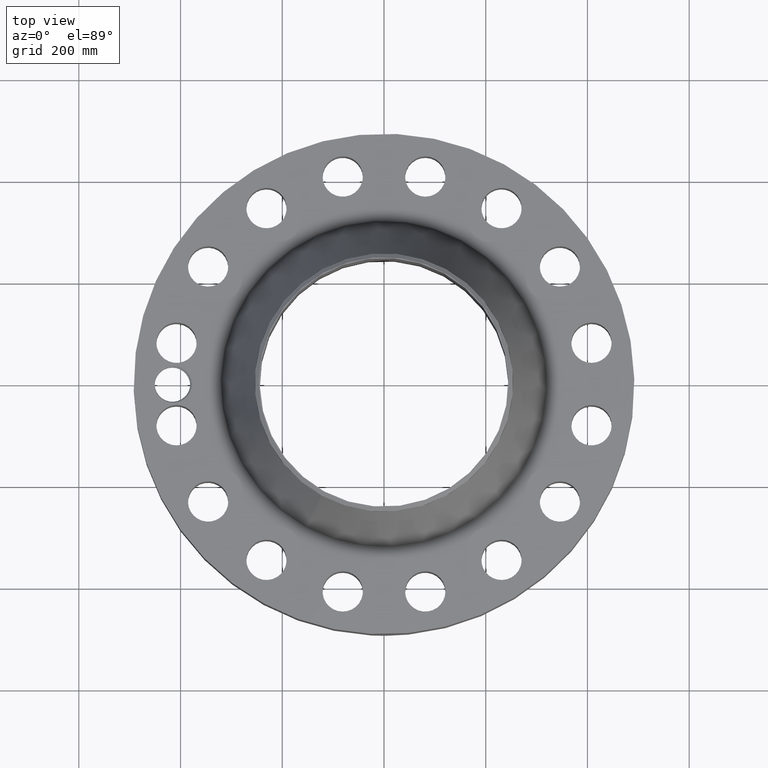
[diagram: clean part render]
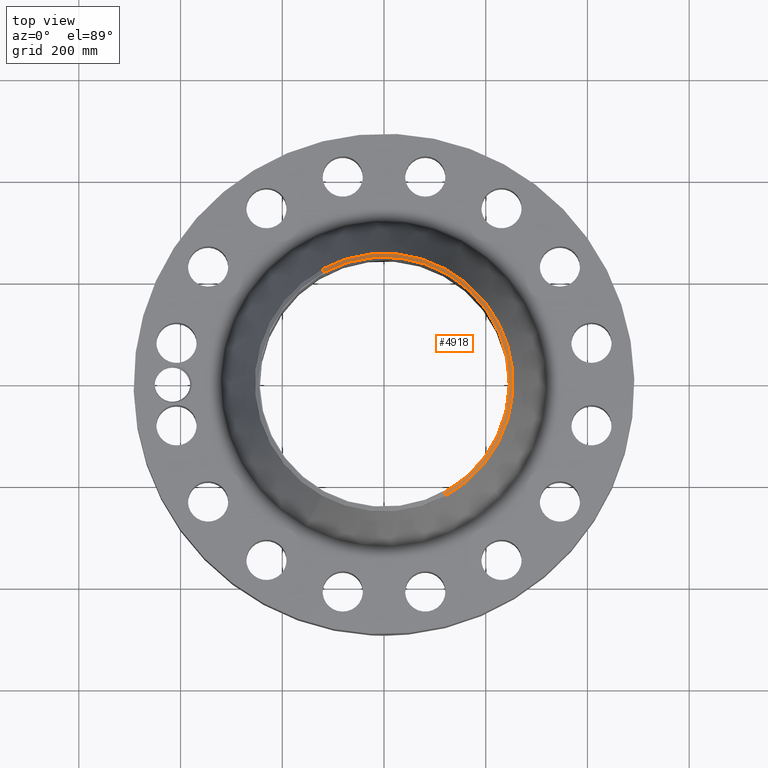
[diagram: same view with one face highlighted and labeled with its STEP entity id]
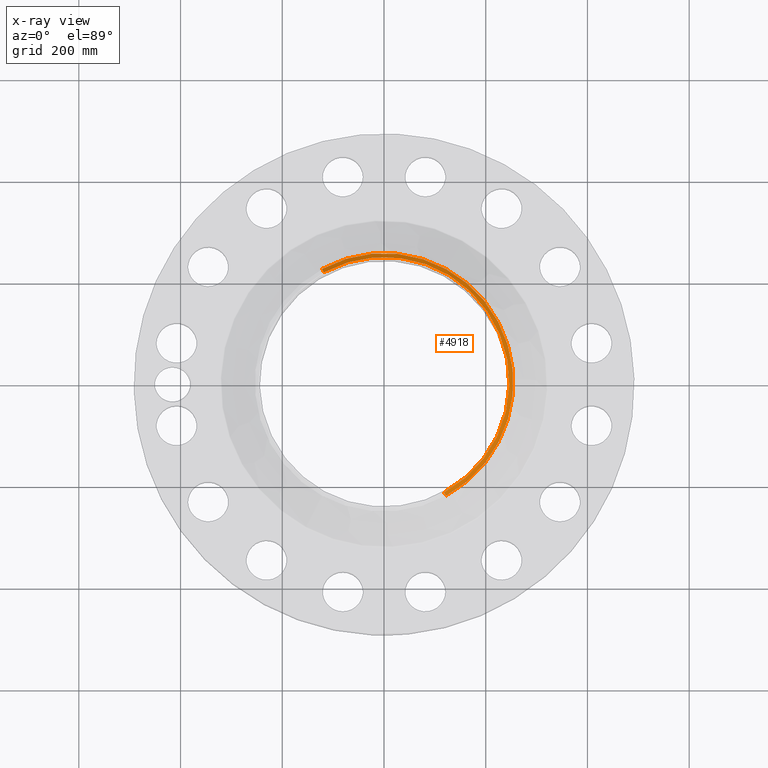
[diagram: x-ray of the same camera — body ghosted, the highlighted face saturated]
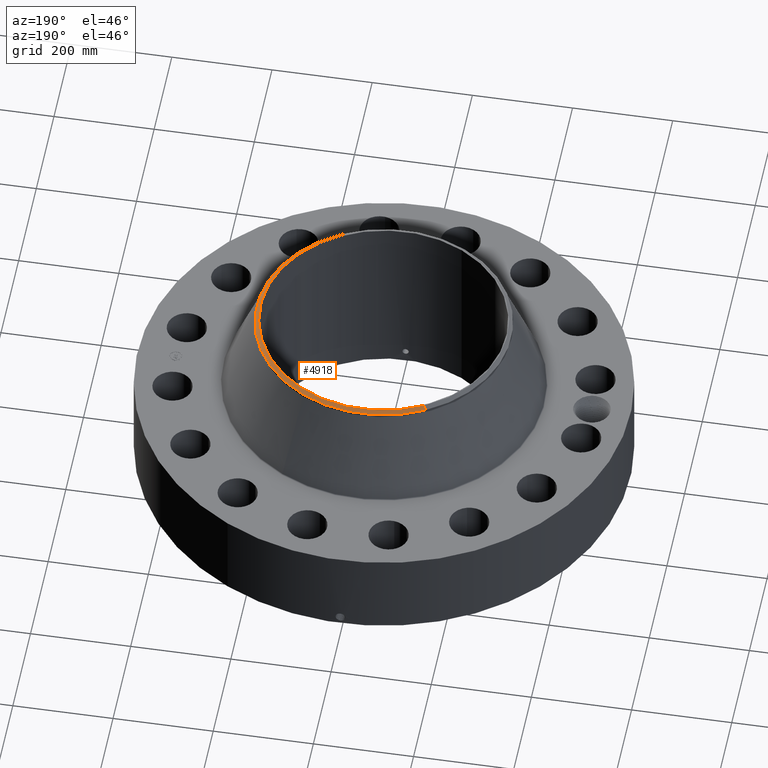
[diagram: same view with one face highlighted and labeled with its STEP entity id]
A machine part, top view. The second image highlights one B-rep face of the part: STEP entity #4918.
The next image is the same camera in x-ray: the body ghosted, the highlighted face saturated — about 0% of this face is hidden behind the body in this view.
A second angle (auxiliary view) of the same face is appended — the face is thin or edge-on in the first view.
In plain terms, the highlighted conical surface has half-angle 52.5 deg.
Its self-contained STEP definition (entity closure, byte-faithful):
#3745=AXIS2_PLACEMENT_3D('Circle Axis2P3D',#3743,#3744,$) ;
#3772=AXIS2_PLACEMENT_3D('Circle Axis2P3D',#3770,#3771,$) ;
#4546=AXIS2_PLACEMENT_3D('Circle Axis2P3D',#4544,#4545,$) ;
#4899=AXIS2_PLACEMENT_3D('Cone Axis2P3D',#4896,#4897,#4898) ;
#3740=CARTESIAN_POINT('Vertex',(4.79425538606,8.77582561894,14.0226718274)) ;
#3743=CARTESIAN_POINT('Axis2P3D Location',(0.,0.,14.0226718274)) ;
#3747=CARTESIAN_POINT('Vertex',(4.79425538606,-8.77582561894,14.0226718274)) ;
#3767=CARTESIAN_POINT('Vertex',(-4.79425538606,8.77582561894,14.0226718274)) ;
#3770=CARTESIAN_POINT('Axis2P3D Location',(0.,0.,14.0226718274)) ;
#4544=CARTESIAN_POINT('Axis2P3D Location',(0.,0.,14.2500000001)) ;
#4548=CARTESIAN_POINT('Vertex',(4.65222085149,-8.51583314735,14.2500000001)) ;
#4550=CARTESIAN_POINT('Vertex',(-4.65222085149,8.51583314735,14.2500000001)) ;
#4896=CARTESIAN_POINT('Axis2P3D Location',(0.,0.,14.2500000001)) ;
#4901=CARTESIAN_POINT('Line Origine',(-4.72323811878,8.64582938315,14.1363359137)) ;
#4906=CARTESIAN_POINT('Line Origine',(4.72323811878,-8.64582938315,14.1363359137)) ;
#3744=DIRECTION('Axis2P3D Direction',(0.,0.,-0.0393700787402)) ;
#3771=DIRECTION('Axis2P3D Direction',(0.,0.,-0.0393700787402)) ;
#4545=DIRECTION('Axis2P3D Direction',(0.,0.,-0.0393700787402)) ;
#4897=DIRECTION('Axis2P3D Direction',(-0.,-0.,-0.0393700787402)) ;
#4898=DIRECTION('Axis2P3D XDirection',(0.0188750212049,-0.0345504945626,0.)) ;
#4902=DIRECTION('Vector Direction',(-0.014974561121,0.02741075027,-0.023966985394)) ;
#4907=DIRECTION('Vector Direction',(0.014974561121,-0.02741075027,-0.023966985394)) ;
#4903=VECTOR('Line Direction',#4902,0.0393700787402) ;
#4908=VECTOR('Line Direction',#4907,0.0393700787402) ;
#4912=ORIENTED_EDGE('',*,*,#4905,.F.) ;
#4913=ORIENTED_EDGE('',*,*,#4552,.F.) ;
#4914=ORIENTED_EDGE('',*,*,#4910,.T.) ;
#4915=ORIENTED_EDGE('',*,*,#3749,.T.) ;
#4916=ORIENTED_EDGE('',*,*,#3774,.F.) ;
#4918=ADVANCED_FACE('PartBody',(#4917),#4900,.T.) ;
#3746=CIRCLE('generated circle',#3745,10.) ;
#3773=CIRCLE('generated circle',#3772,10.) ;
#4547=CIRCLE('generated circle',#4546,9.70374015752) ;
#4900=CONICAL_SURFACE('Cone',#4899,9.70374015752,0.916297857297) ;
#3749=EDGE_CURVE('',#3748,#3741,#3746,.F.) ;
#3774=EDGE_CURVE('',#3768,#3741,#3773,.T.) ;
#4552=EDGE_CURVE('',#4549,#4551,#4547,.F.) ;
#4905=EDGE_CURVE('',#4551,#3768,#4904,.T.) ;
#4910=EDGE_CURVE('',#4549,#3748,#4909,.T.) ;
#4911=EDGE_LOOP('',(#4912,#4913,#4914,#4915,#4916)) ;
#4917=FACE_OUTER_BOUND('',#4911,.T.) ;
#4904=LINE('Line',#4901,#4903) ;
#4909=LINE('Line',#4906,#4908) ;
#3741=VERTEX_POINT('',#3740) ;
#3748=VERTEX_POINT('',#3747) ;
#3768=VERTEX_POINT('',#3767) ;
#4549=VERTEX_POINT('',#4548) ;
#4551=VERTEX_POINT('',#4550) ;